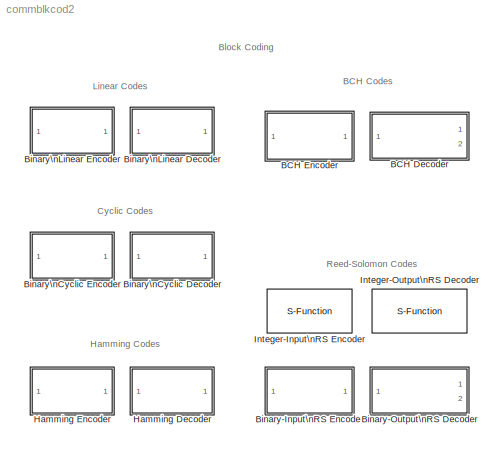
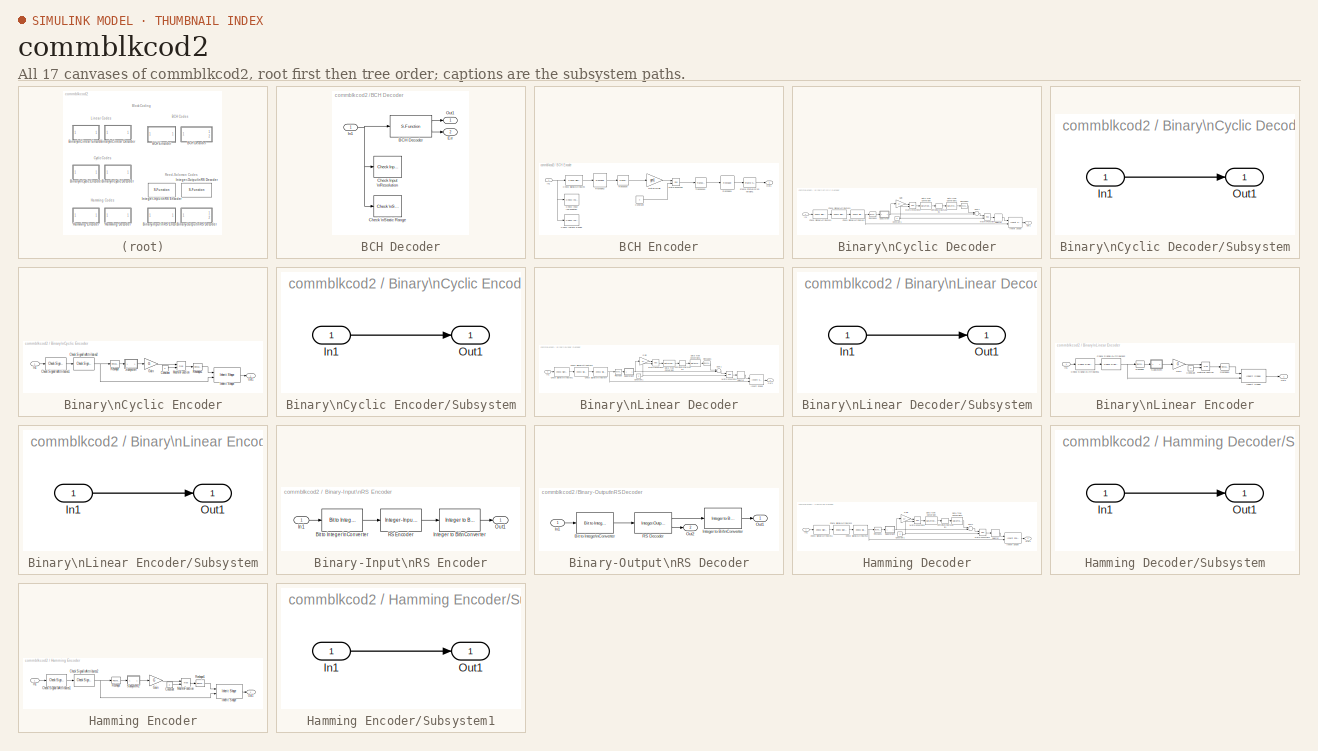
[diagram: thumbnail index - all 17 canvases of the model, root first then tree order]
MODEL commblkcod2
KIND library
BLOCK [SubSystem] BCH Decoder
  MaskCallbackString = ||
  MaskDescription = Decode a BCH codeword with message length K and codeword length N. N must have the form 2^M-1, where 3 <= M <= 9 .  The values of N and K must produce a valid narrow-sense BCH codeword.\n\nThe input must contain exactly N elements. The input must be a frame-based column vector.
  MaskDisplay = plot(0,0,100,100,[5 15 15 5 15 15 5 5 15 15 20 15 75 75 85 75 75 15 75 75 85 85 95 95 85 85 95],[75 75 85 85 85 65 65 95 95 83 80 77 77 73 80 87 83 83 83 87 80 90 90 70 70 80 80]);disp('BCH de');\nport_label('output',params.portnum, params.portlabel);\n
  MaskEnableString = on,on,on
  MaskHelp = helpview(commbhelp)
  MaskIconFrame = on
  MaskIconOpaque = on
  MaskIconRotate = none
  MaskIconUnits = autoscale
  MaskInitialization = params = commblksbchdec(n,k, showNumErr);
  MaskPromptString = N|K|Output number of corrected errors
  MaskSelfModifiable = on
  MaskStyleString = edit,edit,checkbox
  MaskTabNameString = ,,
  MaskToolTipString = on,on,on
  MaskTunableValueString = on,on,off
  MaskType = BCH Decoder
  MaskValueString = 15|5|on
  MaskVarAliasString = ,,
  MaskVariables = n=@1;k=@2;showNumErr=@3;
  MaskVisibilityString = on,on,on
  MinAlgLoopOccurrences = off
  Ports = [1, 2]
  PropExecContextAcrossSSBoundary = on
  RTWSystemCode = Auto
  TreatAsAtomicUnit = off
BLOCK [S-Function] BCH Decoder/BCH Decoder
  FunctionName = scomberlekamp
  Parameters = n,k,params.m, params.t,params.poly,1,0,1
  Ports = [1, 2]
BLOCK [Reference] BCH Decoder/Check Input \nResolution  REF=simulink/Model\nVerification/Check Input \nResolution
  Description = -Inf < u < +Inf
  Ports = [1]
  SourceBlock = simulink/Model\nVerification/Check Input \nResolution
  SourceType = Checks_Resolution
  callback = error('Input must be 0 or 1')
  enabled = on
  export = off
  resolution = 1
  stopWhenAssertionFail = on
BLOCK [Reference] BCH Decoder/Check \nStatic Range  REF=simulink/Model\nVerification/Check \nStatic Range
  Description = 0 <= u <= 1
  Ports = [1]
  SourceBlock = simulink/Model\nVerification/Check \nStatic Range
  SourceType = Checks_SRange
  callback = error('Input must be 0 or 1')
  enabled = on
  export = off
  icon = graphic
  max = 1
  max_included = on
  min = 0
  min_included = on
  stopWhenAssertionFail = on
BLOCK [Outport] BCH Decoder/Err
  BusOutputAsStruct = off
  IconDisplay = Port number
  Port = 2
BLOCK [Inport] BCH Decoder/In1
  IconDisplay = Port number
  LatchInput = off
BLOCK [Outport] BCH Decoder/Out1
  BusOutputAsStruct = off
  IconDisplay = Port number
BLOCK [SubSystem] BCH Encoder
  MaskCallbackString = |
  MaskDescription = Create a BCH code with message length K and codeword length N. N must have the form 2^M-1, where 3 <= M <= 9.  The values of N and K must produce a valid narrow-sense BCH codeword.\n\nThe input must contain exactly K elements. The input must be a frame-based column vector.
  MaskDisplay = plot(0,0,100,100,[05 15 15 05 05 15 15 15  15 20 15 75 75 85 75 75 15 75 75  85 85 95 95 85 85 95 85 85 95],[80 80 90 90 70 70 90 80  83 80 77 77 73 80 87 83 83 83 87  80 95 95 65 65 85 85 85 75 75]);disp('BCH en')
  MaskEnableString = on,on
  MaskHelp = helpview(commbhelp)
  MaskIconFrame = on
  MaskIconOpaque = on
  MaskIconRotate = none
  MaskIconUnits = autoscale
  MaskInitialization = genpoly = bchgenpoly(n,k);\n[h, gen] = cyclgen(n,double(genpoly.x));\ngen1 =[ gen(:,n-k+1:end) gen(:,1:n-k) ];
  MaskPromptString = N|K
  MaskStyleString = edit,edit
  MaskTabNameString = ,
  MaskToolTipString = on,on
  MaskTunableValueString = on,on
  MaskType = BCH Encoder
  MaskValueString = 15|5
  MaskVarAliasString = ,
  MaskVariables = n=@1;k=@2;
  MaskVisibilityString = on,on
  MinAlgLoopOccurrences = off
  Ports = [1, 1]
  PropExecContextAcrossSSBoundary = on
  RTWSystemCode = Auto
  TreatAsAtomicUnit = off
BLOCK [Reference] BCH Encoder/Check Input \nResolution  REF=simulink/Model\nVerification/Check Input \nResolution
  Description = -Inf < u < +Inf
  Ports = [1]
  SourceBlock = simulink/Model\nVerification/Check Input \nResolution
  SourceType = Checks_Resolution
  callback = error('Input must be 0 or 1')
  enabled = on
  export = off
  resolution = 1
  stopWhenAssertionFail = on
BLOCK [Reference] BCH Encoder/Check Signal\nAttributes  REF=dspsigattribs/Check Signal\nAttributes
  AttributesFormatString = \\n
  Complexity = Real
  DatatypeCheckMethod = Ignore
  DatatypeGeneral = Boolean
  Dimensions = Column vector (2-D)
  DimsCheckMethod = Is...
  DtypeFixedSpecific = Any fixed-point
  DtypeFloatSpecific = Any floating-point
  DtypeIntSpecific = Any integer
  Frame = Frame-based
  Ports = [1, 1]
  SampleMode = Ignore
  SigAttribCheckMethod = Does not match attributes exactly
  SourceBlock = dspsigattribs/Check Signal\nAttributes
  SourceType = Check Signal Attributes
BLOCK [Reference] BCH Encoder/Check \nStatic Range  REF=simulink/Model\nVerification/Check \nStatic Range
  Description = 0 <= u <= 1
  Ports = [1]
  SourceBlock = simulink/Model\nVerification/Check \nStatic Range
  SourceType = Checks_SRange
  callback = error('Input must be 0 or 1')
  enabled = on
  export = off
  icon = graphic
  max = 1
  max_included = on
  min = 0
  min_included = on
  stopWhenAssertionFail = on
BLOCK [Constant] BCH Encoder/Constant
  Value = 2
BLOCK [Reference] BCH Encoder/Frame Status\nConversion1  REF=dspsigattribs/Frame Status\nConversion
  AttributesFormatString = \\n
  Ports = [1, 1]
  SourceBlock = dspsigattribs/Frame Status\nConversion
  SourceType = Frame Status Conversion
  growRefPort = off
  outframe = Frame-based
BLOCK [Inport] BCH Encoder/In1
  IconDisplay = Port number
  LatchInput = off
BLOCK [Math] BCH Encoder/Math\nFunction
  Operator = mod
  Ports = [2, 1]
BLOCK [Gain] BCH Encoder/Matrix\nGain
  Gain = gen1
  Multiplication = Matrix(u*K)
BLOCK [Outport] BCH Encoder/Out1
  BusOutputAsStruct = off
  IconDisplay = Port number
BLOCK [Reference] BCH Encoder/Reshape1  REF=simulink/Math\nOperations/Reshape
  OutputDimensionality = Customize
  OutputDimensions = [n,1]
  Ports = [1, 1]
  SourceBlock = simulink/Math\nOperations/Reshape
  SourceType = Reshape
BLOCK [Reference] BCH Encoder/Reshape2  REF=simulink/Math\nOperations/Reshape
  OutputDimensionality = Customize
  OutputDimensions = [k, 1 ]
  Ports = [1, 1]
  SourceBlock = simulink/Math\nOperations/Reshape
  SourceType = Reshape
BLOCK [Reference] BCH Encoder/Transpose  REF=dspmtrx3/Transpose
  AttributesFormatString = \\n
  Hermitian = off
  Ports = [1, 1]
  SourceBlock = dspmtrx3/Transpose
  SourceType = Transpose
BLOCK [Reference] BCH Encoder/Transpose1  REF=dspmtrx3/Transpose
  AttributesFormatString = \\n
  Hermitian = off
  Ports = [1, 1]
  SourceBlock = dspmtrx3/Transpose
  SourceType = Transpose
BLOCK [SubSystem] Binary-Input\nRS Encoder
  MaskCallbackString = ||commblkrsencbin(gcb,'cbSpecPrimPoly');||commblkrsencbin(gcb,'cbSpecGenPoly');|
  MaskDescription = Encode the message in the input vector using an (N,K) Reed-Solomon encoder with the narrow-sense generator polynomial.  The input must be a frame-based column vector with an integer multiple of K*ceil(log2(N+1)) bits.  Each group of K*ceil(log2(N+1)) input bits represents one message word to be encoded.\n\nThe optional 'Primitive polynomial' parameter is a row vector that represents the binary coe...<+485ch>
  MaskDisplay = plot(0,0,100,100,[05 15 15 05 05 15 15 15  15 20 15 75 75 85 75 75 15 75 75  85 85 95 95 85 85 95 85 85 95],[80 80 90 90 70 70 90 80  83 80 77 77 73 80 87 83 83 83 87  80 95 95 65 65 85 85 85 75 75]);\ndisp('\\nBinary Input\\nRS Encoder')
  MaskEnableString = on,on,on,off,on,off
  MaskHelp = helpview(commbhelp)
  MaskIconFrame = on
  MaskIconOpaque = on
  MaskIconRotate = none
  MaskIconUnits = autoscale
  MaskInitialization = [eStr,params]=commblkrsencbin(gcb, 'init');\nif(eStr.ecode==1)\n    error(eStr.emsg);\nelseif(eStr.ecode==2)\n    warning(eStr.emsg);\nend;\n
  MaskPromptString = Codeword length N:|Message length K:|Specify primitive polynomial|Primitive polynomial:|Specify generator polynomial|Generator polynomial:
  MaskSelfModifiable = on
  MaskStyleString = edit,edit,checkbox,edit,checkbox,edit
  MaskTabNameString = ,,,,,
  MaskToolTipString = on,on,on,on,on,on
  MaskTunableValueString = on,on,on,on,on,on
  MaskType = Binary-Input RS Encoder
  MaskValueString = 7|3|off|[1 0 1 1]|off|rsgenpoly(7,3)
  MaskVarAliasString = ,,,,,
  MaskVariables = n=@1;k=@2;specPrimPoly=@3;primPoly=@4;specGenPoly=@5;genPoly=@6;
  MaskVisibilityString = on,on,on,on,on,on
  MinAlgLoopOccurrences = off
  Ports = [1, 1]
  PropExecContextAcrossSSBoundary = on
  RTWSystemCode = Auto
  TreatAsAtomicUnit = off
BLOCK [Reference] Binary-Input\nRS Encoder/Bit to Integer\nConverter  REF=commutil2/Bit to Integer\nConverter
  Ports = [1, 1]
  SourceBlock = commutil2/Bit to Integer\nConverter
  SourceType = Bit to Integer Converter
  nbits = params.m
BLOCK [Inport] Binary-Input\nRS Encoder/In1
  IconDisplay = Port number
  LatchInput = off
BLOCK [Reference] Binary-Input\nRS Encoder/Integer to Bit\nConverter  REF=commutil2/Integer to Bit\nConverter
  Ports = [1, 1]
  SourceBlock = commutil2/Integer to Bit\nConverter
  SourceType = Integer to Bit Converter
  nbits = params.m
BLOCK [Outport] Binary-Input\nRS Encoder/Out1
  BusOutputAsStruct = off
  IconDisplay = Port number
BLOCK [Reference] Binary-Input\nRS Encoder/RS Encoder  REF=commblkcod2/Integer-Input\nRS Encoder
  Ports = [1, 1]
  SourceBlock = commblkcod2/Integer-Input\nRS Encoder
  SourceType = Integer-Input RS Encoder
  genPoly = genPoly
  k = k
  n = n
  primPoly = primPoly
  specGenPoly = off
  specPrimPoly = off
BLOCK [SubSystem] Binary-Output\nRS Decoder
  MaskCallbackString = ||commblkrsdecbin(gcb,'cbSpecPrimPoly');||commblkrsdecbin(gcb,'cbSpecGenPoly');||commblkrsdecbin(gcb,'cbShowNumErr');
  MaskDescription = Attempt to decode the input received signal using an (N,K) Reed-Solomon decoder with the narrow-sense generator polynomial.  The input must be a frame-based column vector with an integer multiple of N*ceil(log2(N+1)) bits.  Each group of N*ceil(log2(N+1)) input bits represents one received word to be decoded.\n\nThe optional 'Primitive polynomial' parameter is a row vector that represents the bina...<+830ch>
  MaskDisplay = plot(0,0,100,100,[5 15 15 5 15 15 5 5 15 15 20 15 75 75 85 75 75 15 75 75 85 85 95 95 85 85 95],[75 75 85 85 85 65 65 95 95 83 80 77 77 73 80 87 83 83 83 87 80 90 90 70 70 80 80]);\ndisp('\\nBinary Output\\nRS Decoder')\ntext(params.x,params.y,params.portlabel)\n
  MaskEnableString = on,on,on,off,on,off,on
  MaskHelp = helpview(commbhelp)
  MaskIconFrame = on
  MaskIconOpaque = on
  MaskIconRotate = none
  MaskIconUnits = autoscale
  MaskInitialization = [eStr,params]=commblkrsdecbin(gcb, 'init');\nif(eStr.ecode==1)\n    error(eStr.emsg);\nelseif(eStr.ecode==2)\n    warning(eStr.emsg);\nend;\n
  MaskPromptString = Codeword length N:|Message length K:|Specify primitive polynomial|Primitive polynomial:|Specify generator polynomial|Generator polynomial:|Output number of corrected errors
  MaskSelfModifiable = on
  MaskStyleString = edit,edit,checkbox,edit,checkbox,edit,checkbox
  MaskTabNameString = ,,,,,,
  MaskToolTipString = on,on,on,on,on,on,on
  MaskTunableValueString = on,on,on,on,on,on,off
  MaskType = Binary-Output RS Decoder
  MaskValueString = 7|3|off|[1 0 1 1]|off|rsgenpoly(7,3)|on
  MaskVarAliasString = ,,,,,,
  MaskVariables = n=@1;k=@2;specPrimPoly=@3;primPoly=@4;specGenPoly=@5;genPoly=@6;showNumErr=@7;
  MaskVisibilityString = on,on,on,on,on,on,on
  MinAlgLoopOccurrences = off
  Ports = [1, 2]
  PropExecContextAcrossSSBoundary = on
  RTWSystemCode = Auto
  TreatAsAtomicUnit = off
BLOCK [Reference] Binary-Output\nRS Decoder/Bit to Integer\nConverter  REF=commutil2/Bit to Integer\nConverter
  Ports = [1, 1]
  SourceBlock = commutil2/Bit to Integer\nConverter
  SourceType = Bit to Integer Converter
  nbits = params.m
BLOCK [Inport] Binary-Output\nRS Decoder/In1
  IconDisplay = Port number
  LatchInput = off
BLOCK [Reference] Binary-Output\nRS Decoder/Integer to Bit\nConverter  REF=commutil2/Integer to Bit\nConverter
  Ports = [1, 1]
  SourceBlock = commutil2/Integer to Bit\nConverter
  SourceType = Integer to Bit Converter
  nbits = params.m
BLOCK [Outport] Binary-Output\nRS Decoder/Out1
  BusOutputAsStruct = off
  IconDisplay = Port number
BLOCK [Outport] Binary-Output\nRS Decoder/Out2
  BusOutputAsStruct = off
  IconDisplay = Port number
  Port = 2
BLOCK [Reference] Binary-Output\nRS Decoder/RS Decoder  REF=commblkcod2/Integer-Output\nRS Decoder
  Ports = [1, 2]
  SourceBlock = commblkcod2/Integer-Output\nRS Decoder
  SourceType = Integer-Output RS Decoder
  genPoly = genPoly
  k = k
  n = n
  primPoly = primPoly
  showNumErr = on
  specGenPoly = off
  specPrimPoly = off
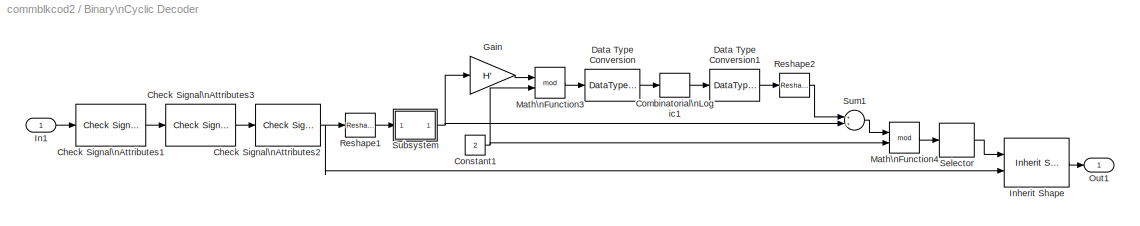
BLOCK [SubSystem] Binary\nCyclic Decoder
  MaskCallbackString = |
  MaskDescription = Recover a message vector from a codeword vector of a binary systematic cyclic code.  The message is of length K and the codeword is of length N, where N has the form 2^M-1, for some integer M greater than or equal to 3.\n\nThe input must contain exactly N elements.  If it is frame-based, then it must be a column vector.
  MaskDisplay = plot(0,0,100,100,[5 15 15 5 15 15 5 5 15 15 20 15 75 75 85 75 75 15 75 75 85 85 95 95 85 85 95],[75 75 85 85 85 65 65 95 95 83 80 77 77 73 80 87 83 83 83 87 80 90 90 70 70 80 80]);\ndisp('Cyclic de')
  MaskEnableString = on,on
  MaskHelp = helpview(commbhelp)
  MaskIconFrame = on
  MaskIconOpaque = on
  MaskIconRotate = none
  MaskIconUnits = autoscale
  MaskInitialization = m=log2(n+1); if ~isequal(floor(m),m) | n<3,error('N must have the form 2^M-1 for some integer M greater than 2.');end;\nevalc('if isequal(length(p),1),p=cyclpoly(n,p,''min'');if isempty(p), error(''No cyclic code exists for specified values of N and K.''); end; end;[H,G]=cyclgen(n,p);trt=syndtable(H);');[k,n]=size(G);
  MaskPromptString = Codeword length N:|Message length K, or generator polynomial:
  MaskStyleString = edit,edit
  MaskTabNameString = ,
  MaskToolTipString = on,on
  MaskTunableValueString = on,on
  MaskType = Binary Cyclic Decoder
  MaskValueString = 7|4
  MaskVarAliasString = ,
  MaskVariables = n=@1;p=@2;
  MaskVisibilityString = on,on
  MinAlgLoopOccurrences = off
  Ports = [1, 1]
  PropExecContextAcrossSSBoundary = on
  RTWSystemCode = Auto
  TreatAsAtomicUnit = off
BLOCK [Reference] Binary\nCyclic Decoder/Check Signal\nAttributes1  REF=dspsigattribs/Check Signal\nAttributes
  Complexity = Ignore
  DatatypeCheckMethod = Ignore
  DatatypeGeneral = Boolean
  Dimensions = Row vector (2-D)
  DimsCheckMethod = Is...
  DtypeFixedSpecific = Any fixed-point
  DtypeFloatSpecific = Any floating-point
  DtypeIntSpecific = Any integer
  Frame = Frame-based
  Ports = [1, 1]
  SampleMode = Ignore
  SigAttribCheckMethod = Matches attributes exactly
  SourceBlock = dspsigattribs/Check Signal\nAttributes
  SourceType = Check Signal Attributes
BLOCK [Reference] Binary\nCyclic Decoder/Check Signal\nAttributes2  REF=dspsigattribs/Check Signal\nAttributes
  Complexity = Ignore
  DatatypeCheckMethod = Ignore
  DatatypeGeneral = Boolean
  Dimensions = Full matrix (2-D)
  DimsCheckMethod = Is...
  DtypeFixedSpecific = Any fixed-point
  DtypeFloatSpecific = Any floating-point
  DtypeIntSpecific = Any integer
  Frame = Ignore
  Ports = [1, 1]
  SampleMode = Ignore
  SigAttribCheckMethod = Matches attributes exactly
  SourceBlock = dspsigattribs/Check Signal\nAttributes
  SourceType = Check Signal Attributes
BLOCK [Reference] Binary\nCyclic Decoder/Check Signal\nAttributes3  REF=dspsigattribs/Check Signal\nAttributes
  Complexity = Ignore
  DatatypeCheckMethod = Ignore
  DatatypeGeneral = Boolean
  Dimensions = Scalar (1-D or 2-D)
  DimsCheckMethod = Is...
  DtypeFixedSpecific = Any fixed-point
  DtypeFloatSpecific = Any floating-point
  DtypeIntSpecific = Any integer
  Frame = Ignore
  Ports = [1, 1]
  SampleMode = Ignore
  SigAttribCheckMethod = Matches attributes exactly
  SourceBlock = dspsigattribs/Check Signal\nAttributes
  SourceType = Check Signal Attributes
BLOCK [CombinatorialLogic] Binary\nCyclic Decoder/Combinatorial\nLogic1
  TruthTable = trt
BLOCK [Constant] Binary\nCyclic Decoder/Constant1
  Value = 2
BLOCK [DataTypeConversion] Binary\nCyclic Decoder/Data Type Conversion
  OutDataTypeMode = boolean
BLOCK [DataTypeConversion] Binary\nCyclic Decoder/Data Type Conversion1
  OutDataTypeMode = double
BLOCK [Gain] Binary\nCyclic Decoder/Gain
  Gain = H'
  Multiplication = Matrix(u*K)
BLOCK [Inport] Binary\nCyclic Decoder/In1
  IconDisplay = Port number
  LatchInput = off
BLOCK [Reference] Binary\nCyclic Decoder/Inherit Shape  REF=commblksprivate/Inherit Shape
  Ports = [2, 1]
  SourceBlock = commblksprivate/Inherit Shape
  SourceType = Inherit Shape
BLOCK [Math] Binary\nCyclic Decoder/Math\nFunction3
  Operator = mod
  Ports = [2, 1]
BLOCK [Math] Binary\nCyclic Decoder/Math\nFunction4
  Operator = mod
  Ports = [2, 1]
BLOCK [Outport] Binary\nCyclic Decoder/Out1
  BusOutputAsStruct = off
  IconDisplay = Port number
BLOCK [Reference] Binary\nCyclic Decoder/Reshape1  REF=simulink/Math\nOperations/Reshape
  OutputDimensionality = Row vector
  OutputDimensions = [1,1]
  Ports = [1, 1]
  SourceBlock = simulink/Math\nOperations/Reshape
  SourceType = Reshape
BLOCK [Reference] Binary\nCyclic Decoder/Reshape2  REF=simulink/Math\nOperations/Reshape
  OutputDimensionality = Row vector
  OutputDimensions = [1,1]
  Ports = [1, 1]
  SourceBlock = simulink/Math\nOperations/Reshape
  SourceType = Reshape
BLOCK [Selector] Binary\nCyclic Decoder/Selector
  Elements = [n-k+1:n]
  InputPortWidth = n
  Ports = [1, 1]
BLOCK [SubSystem] Binary\nCyclic Decoder/Subsystem
  AncestorBlock = commblkcod2/Binary\nLinear Decoder/Subsystem
  MaskIconFrame = on
  MaskIconOpaque = on
  MaskIconRotate = none
  MaskIconUnits = autoscale
  MinAlgLoopOccurrences = off
  Ports = [1, 1]
  PropExecContextAcrossSSBoundary = on
  RTWSystemCode = Auto
  TreatAsAtomicUnit = off
BLOCK [Inport] Binary\nCyclic Decoder/Subsystem/In1
  IconDisplay = Port number
  LatchInput = off
  PortDimensions = [1 n]
BLOCK [Outport] Binary\nCyclic Decoder/Subsystem/Out1
  BusOutputAsStruct = off
  IconDisplay = Port number
BLOCK [Sum] Binary\nCyclic Decoder/Sum1
  Ports = [2, 1]
BLOCK [SubSystem] Binary\nCyclic Encoder
  MaskCallbackString = |
  MaskDescription = Create a systematic cyclic code with message length K and codeword length N.  The number N must have the form 2^M-1, where M is an integer greater than or equal to 3.\n\nThe input must contain exactly K elements.  If it is frame-based, then it must be a column vector.
  MaskDisplay = plot(0,0,100,100,[05 15 15 05 05 15 15 15  15 20 15 75 75 85 75 75 15 75 75  85 85 95 95 85 85 95 85 85 95],[80 80 90 90 70 70 90 80  83 80 77 77 73 80 87 83 83 83 87  80 95 95 65 65 85 85 85 75 75]);\ndisp('Cyclic en')
  MaskEnableString = on,on
  MaskHelp = helpview(commbhelp)
  MaskIconFrame = on
  MaskIconOpaque = on
  MaskIconRotate = none
  MaskIconUnits = autoscale
  MaskInitialization = m=log2(n+1); if ~isequal(floor(m),m) | n<3,error('N must have the form 2^M-1 for some integer M >= 3.');end;evalc('if length(p)==1,p=cyclpoly(n,p,''min''); if isempty(p),error(''No cyclic code exists for specified values of N and K.'');end;end;  k=n-length(p)+1; [h,G]=cyclgen(n, p);');
  MaskPromptString = Codeword length N:|Message length K, or generator polynomial:
  MaskStyleString = edit,edit
  MaskTabNameString = ,
  MaskToolTipString = on,on
  MaskTunableValueString = on,on
  MaskType = Binary Cyclic Encoder
  MaskValueString = 7|4
  MaskVarAliasString = ,
  MaskVariables = n=@1;p=@2;
  MaskVisibilityString = on,on
  MinAlgLoopOccurrences = off
  Ports = [1, 1]
  PropExecContextAcrossSSBoundary = on
  RTWSystemCode = Auto
  TreatAsAtomicUnit = off
BLOCK [Reference] Binary\nCyclic Encoder/Check Signal\nAttributes1  REF=dspsigattribs/Check Signal\nAttributes
  Complexity = Ignore
  DatatypeCheckMethod = Ignore
  DatatypeGeneral = Boolean
  Dimensions = Row vector (2-D)
  DimsCheckMethod = Is...
  DtypeFixedSpecific = Any fixed-point
  DtypeFloatSpecific = Any floating-point
  DtypeIntSpecific = Any integer
  Frame = Frame-based
  Ports = [1, 1]
  SampleMode = Ignore
  SigAttribCheckMethod = Matches attributes exactly
  SourceBlock = dspsigattribs/Check Signal\nAttributes
  SourceType = Check Signal Attributes
BLOCK [Reference] Binary\nCyclic Encoder/Check Signal\nAttributes2  REF=dspsigattribs/Check Signal\nAttributes
  Complexity = Ignore
  DatatypeCheckMethod = Ignore
  DatatypeGeneral = Boolean
  Dimensions = Full matrix (2-D)
  DimsCheckMethod = Is...
  DtypeFixedSpecific = Any fixed-point
  DtypeFloatSpecific = Any floating-point
  DtypeIntSpecific = Any integer
  Frame = Ignore
  Ports = [1, 1]
  SampleMode = Ignore
  SigAttribCheckMethod = Matches attributes exactly
  SourceBlock = dspsigattribs/Check Signal\nAttributes
  SourceType = Check Signal Attributes
BLOCK [Constant] Binary\nCyclic Encoder/Constant
  Value = 2
BLOCK [Gain] Binary\nCyclic Encoder/Gain
  Gain = G
  Multiplication = Matrix(u*K)
BLOCK [Inport] Binary\nCyclic Encoder/In1
  IconDisplay = Port number
  LatchInput = off
BLOCK [Reference] Binary\nCyclic Encoder/Inherit Shape  REF=commblksprivate/Inherit Shape
  Ports = [2, 1]
  SourceBlock = commblksprivate/Inherit Shape
  SourceType = Inherit Shape
BLOCK [Math] Binary\nCyclic Encoder/Math\nFunction
  Operator = mod
  Ports = [2, 1]
BLOCK [Outport] Binary\nCyclic Encoder/Out1
  BusOutputAsStruct = off
  IconDisplay = Port number
BLOCK [Reference] Binary\nCyclic Encoder/Reshape  REF=simulink/Math\nOperations/Reshape
  OutputDimensionality = Row vector
  OutputDimensions = [1,1]
  Ports = [1, 1]
  SourceBlock = simulink/Math\nOperations/Reshape
  SourceType = Reshape
BLOCK [Reference] Binary\nCyclic Encoder/Reshape1  REF=simulink/Math\nOperations/Reshape
  OutputDimensionality = Column vector
  OutputDimensions = [1,1]
  Ports = [1, 1]
  SourceBlock = simulink/Math\nOperations/Reshape
  SourceType = Reshape
BLOCK [SubSystem] Binary\nCyclic Encoder/Subsystem
  AncestorBlock = commblkcod2/Binary\nLinear Decoder/Subsystem
  MaskIconFrame = on
  MaskIconOpaque = on
  MaskIconRotate = none
  MaskIconUnits = autoscale
  MinAlgLoopOccurrences = off
  Ports = [1, 1]
  PropExecContextAcrossSSBoundary = on
  RTWSystemCode = Auto
  TreatAsAtomicUnit = off
BLOCK [Inport] Binary\nCyclic Encoder/Subsystem/In1
  IconDisplay = Port number
  LatchInput = off
  PortDimensions = [1 k]
BLOCK [Outport] Binary\nCyclic Encoder/Subsystem/Out1
  BusOutputAsStruct = off
  IconDisplay = Port number
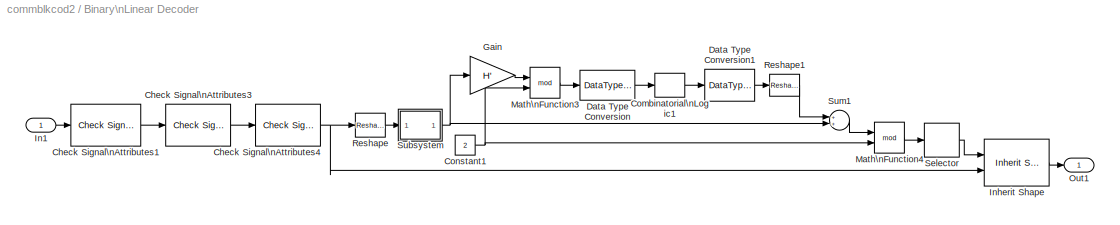
BLOCK [SubSystem] Binary\nLinear Decoder
  MaskCallbackString = |
  MaskDescription = Recover a binary message vector from a binary codeword vector of a linear block code.  The message is of length K and the codeword is of length N, where K and N are the number of rows and columns of the generator matrix respectively.  The number N must have the form 2^M-1, for some integer M greater than or equal to 3.\n\nThe decoder assumes that the encoder's generator matrix has the standard sys...<+215ch>
  MaskDisplay = plot(0,0,100,100,[5 15 15 5 15 15 5 5 15 15 20 15 75 75 85 75 75 15 75 75 85 85 95 95 85 85 95],[75 75 85 85 85 65 65 95 95 83 80 77 77 73 80 87 83 83 83 87 80 90 90 70 70 80 80]);\ndisp('Linear de')
  MaskEnableString = on,on
  MaskHelp = helpview(commbhelp)
  MaskIconFrame = on
  MaskIconOpaque = on
  MaskIconRotate = none
  MaskIconUnits = autoscale
  MaskInitialization = [k,n]=size(G);  if k>=n | ~isequal(G(:,n-k+1:n),eye(k)), error('The generator matrix must have the standard systematic form [P I].'); end;\nH=gen2par(G);if trt==0,evalc('trt=syndtable(H);');end;
  MaskPromptString = Generator matrix (binary K-by-N matrix):|Decoding table (0 for table corresponding to Generator matrix):
  MaskStyleString = edit,edit
  MaskTabNameString = ,
  MaskToolTipString = on,on
  MaskTunableValueString = on,on
  MaskType = Binary Linear Decoder
  MaskValueString = [[1 1 0; 0 1 1; 1 1 1;1 0 1] eye(4)]|0
  MaskVarAliasString = ,
  MaskVariables = G=@1;trt=@2;
  MaskVisibilityString = on,on
  MinAlgLoopOccurrences = off
  Ports = [1, 1]
  PropExecContextAcrossSSBoundary = on
  RTWSystemCode = Auto
  TreatAsAtomicUnit = off
BLOCK [Reference] Binary\nLinear Decoder/Check Signal\nAttributes1  REF=dspsigattribs/Check Signal\nAttributes
  Complexity = Ignore
  DatatypeCheckMethod = Ignore
  DatatypeGeneral = Boolean
  Dimensions = Row vector (2-D)
  DimsCheckMethod = Is...
  DtypeFixedSpecific = Any fixed-point
  DtypeFloatSpecific = Any floating-point
  DtypeIntSpecific = Any integer
  Frame = Frame-based
  Ports = [1, 1]
  SampleMode = Ignore
  SigAttribCheckMethod = Matches attributes exactly
  SourceBlock = dspsigattribs/Check Signal\nAttributes
  SourceType = Check Signal Attributes
BLOCK [Reference] Binary\nLinear Decoder/Check Signal\nAttributes3  REF=dspsigattribs/Check Signal\nAttributes
  Complexity = Ignore
  DatatypeCheckMethod = Ignore
  DatatypeGeneral = Boolean
  Dimensions = Scalar (1-D or 2-D)
  DimsCheckMethod = Is...
  DtypeFixedSpecific = Any fixed-point
  DtypeFloatSpecific = Any floating-point
  DtypeIntSpecific = Any integer
  Frame = Ignore
  Ports = [1, 1]
  SampleMode = Ignore
  SigAttribCheckMethod = Matches attributes exactly
  SourceBlock = dspsigattribs/Check Signal\nAttributes
  SourceType = Check Signal Attributes
BLOCK [Reference] Binary\nLinear Decoder/Check Signal\nAttributes4  REF=dspsigattribs/Check Signal\nAttributes
  Complexity = Ignore
  DatatypeCheckMethod = Ignore
  DatatypeGeneral = Boolean
  Dimensions = Full matrix (2-D)
  DimsCheckMethod = Is...
  DtypeFixedSpecific = Any fixed-point
  DtypeFloatSpecific = Any floating-point
  DtypeIntSpecific = Any integer
  Frame = Ignore
  Ports = [1, 1]
  SampleMode = Ignore
  SigAttribCheckMethod = Matches attributes exactly
  SourceBlock = dspsigattribs/Check Signal\nAttributes
  SourceType = Check Signal Attributes
BLOCK [CombinatorialLogic] Binary\nLinear Decoder/Combinatorial\nLogic1
  TruthTable = trt
BLOCK [Constant] Binary\nLinear Decoder/Constant1
  Value = 2
BLOCK [DataTypeConversion] Binary\nLinear Decoder/Data Type Conversion
  OutDataTypeMode = boolean
BLOCK [DataTypeConversion] Binary\nLinear Decoder/Data Type Conversion1
  OutDataTypeMode = double
BLOCK [Gain] Binary\nLinear Decoder/Gain
  Gain = H'
  Multiplication = Matrix(u*K)
BLOCK [Inport] Binary\nLinear Decoder/In1
  IconDisplay = Port number
  LatchInput = off
BLOCK [Reference] Binary\nLinear Decoder/Inherit Shape  REF=commblksprivate/Inherit Shape
  Ports = [2, 1]
  SourceBlock = commblksprivate/Inherit Shape
  SourceType = Inherit Shape
BLOCK [Math] Binary\nLinear Decoder/Math\nFunction3
  Operator = mod
  Ports = [2, 1]
BLOCK [Math] Binary\nLinear Decoder/Math\nFunction4
  Operator = mod
  Ports = [2, 1]
BLOCK [Outport] Binary\nLinear Decoder/Out1
  BusOutputAsStruct = off
  IconDisplay = Port number
BLOCK [Reference] Binary\nLinear Decoder/Reshape  REF=simulink/Math\nOperations/Reshape
  OutputDimensionality = Row vector
  OutputDimensions = [1,1]
  Ports = [1, 1]
  SourceBlock = simulink/Math\nOperations/Reshape
  SourceType = Reshape
BLOCK [Reference] Binary\nLinear Decoder/Reshape1  REF=simulink/Math\nOperations/Reshape
  OutputDimensionality = Row vector
  OutputDimensions = [1,1]
  Ports = [1, 1]
  SourceBlock = simulink/Math\nOperations/Reshape
  SourceType = Reshape
BLOCK [Selector] Binary\nLinear Decoder/Selector
  Elements = [n-k+1:n]
  InputPortWidth = n
  Ports = [1, 1]
BLOCK [SubSystem] Binary\nLinear Decoder/Subsystem
  AncestorBlock = commblkcod2/Binary\nLinear Encoder/Subsystem
  MaskIconFrame = on
  MaskIconOpaque = on
  MaskIconRotate = none
  MaskIconUnits = autoscale
  MinAlgLoopOccurrences = off
  Ports = [1, 1]
  PropExecContextAcrossSSBoundary = on
  RTWSystemCode = Auto
  TreatAsAtomicUnit = off
BLOCK [Inport] Binary\nLinear Decoder/Subsystem/In1
  IconDisplay = Port number
  LatchInput = off
  PortDimensions = [1 n]
BLOCK [Outport] Binary\nLinear Decoder/Subsystem/Out1
  BusOutputAsStruct = off
  IconDisplay = Port number
BLOCK [Sum] Binary\nLinear Decoder/Sum1
  Ports = [2, 1]
BLOCK [SubSystem] Binary\nLinear Encoder
  MaskDescription = Create a binary linear block code with message length K and codeword length N, where K and N are the number of rows and columns of the generator matrix respectively.\n\nTo use the Binary Linear Decoder block at the decoder side, provide a generator matrix in the standard systematic form [P I].\n\nThe input must contain exactly K elements.  If it is frame-based, then it must be a column vector.
  MaskDisplay = plot(0,0,100,100,[05 15 15 05 05 15 15 15  15 20 15 75 75 85 75 75 15 75 75  85 85 95 95 85 85 95 85 85 95],[80 80 90 90 70 70 90 80  83 80 77 77 73 80 87 83 83 83 87  80 95 95 65 65 85 85 85 75 75]);\ndisp('Linear en')
  MaskEnableString = on
  MaskHelp = helpview(commbhelp)
  MaskIconFrame = on
  MaskIconOpaque = on
  MaskIconRotate = none
  MaskIconUnits = autoscale
  MaskInitialization = [k n]=size(G);
  MaskPromptString = Generator matrix (binary K-by-N matrix):
  MaskStyleString = edit
  MaskToolTipString = on
  MaskTunableValueString = on
  MaskType = Binary Linear Encoder
  MaskValueString = [[1 1 0; 0 1 1; 1 1 1; 1 0 1] eye(4)]
  MaskVariables = G=@1;
  MaskVisibilityString = on
  MinAlgLoopOccurrences = off
  Ports = [1, 1]
  PropExecContextAcrossSSBoundary = on
  RTWSystemCode = Auto
  TreatAsAtomicUnit = off
BLOCK [Reference] Binary\nLinear Encoder/Check Signal\nAttributes1  REF=dspsigattribs/Check Signal\nAttributes
  Complexity = Ignore
  DatatypeCheckMethod = Ignore
  DatatypeGeneral = Boolean
  Dimensions = Row vector (2-D)
  DimsCheckMethod = Is...
  DtypeFixedSpecific = Any fixed-point
  DtypeFloatSpecific = Any floating-point
  DtypeIntSpecific = Any integer
  Frame = Frame-based
  Ports = [1, 1]
  SampleMode = Ignore
  SigAttribCheckMethod = Matches attributes exactly
  SourceBlock = dspsigattribs/Check Signal\nAttributes
  SourceType = Check Signal Attributes
BLOCK [Reference] Binary\nLinear Encoder/Check Signal\nAttributes2  REF=dspsigattribs/Check Signal\nAttributes
  Complexity = Ignore
  DatatypeCheckMethod = Ignore
  DatatypeGeneral = Boolean
  Dimensions = Full matrix (2-D)
  DimsCheckMethod = Is...
  DtypeFixedSpecific = Any fixed-point
  DtypeFloatSpecific = Any floating-point
  DtypeIntSpecific = Any integer
  Frame = Ignore
  Ports = [1, 1]
  SampleMode = Ignore
  SigAttribCheckMethod = Matches attributes exactly
  SourceBlock = dspsigattribs/Check Signal\nAttributes
  SourceType = Check Signal Attributes
BLOCK [Constant] Binary\nLinear Encoder/Constant
  Value = 2
BLOCK [Gain] Binary\nLinear Encoder/Gain
  Gain = G
  Multiplication = Matrix(u*K)
BLOCK [Inport] Binary\nLinear Encoder/In1
  IconDisplay = Port number
  LatchInput = off
BLOCK [Reference] Binary\nLinear Encoder/Inherit Shape  REF=commblksprivate/Inherit Shape
  Ports = [2, 1]
  SourceBlock = commblksprivate/Inherit Shape
  SourceType = Inherit Shape
BLOCK [Math] Binary\nLinear Encoder/Math\nFunction
  Operator = mod
  Ports = [2, 1]
BLOCK [Outport] Binary\nLinear Encoder/Out1
  BusOutputAsStruct = off
  IconDisplay = Port number
BLOCK [Reference] Binary\nLinear Encoder/Reshape  REF=simulink/Math\nOperations/Reshape
  OutputDimensionality = Row vector
  OutputDimensions = [1,1]
  Ports = [1, 1]
  SourceBlock = simulink/Math\nOperations/Reshape
  SourceType = Reshape
BLOCK [Reference] Binary\nLinear Encoder/Reshape1  REF=simulink/Math\nOperations/Reshape
  OutputDimensionality = Column vector
  OutputDimensions = [1,1]
  Ports = [1, 1]
  SourceBlock = simulink/Math\nOperations/Reshape
  SourceType = Reshape
BLOCK [SubSystem] Binary\nLinear Encoder/Subsystem
  AncestorBlock = commblkcod2/Binary\nLinear Decoder/Subsystem
  MaskIconFrame = on
  MaskIconOpaque = on
  MaskIconRotate = none
  MaskIconUnits = autoscale
  MinAlgLoopOccurrences = off
  Ports = [1, 1]
  PropExecContextAcrossSSBoundary = on
  RTWSystemCode = Auto
  TreatAsAtomicUnit = off
BLOCK [Inport] Binary\nLinear Encoder/Subsystem/In1
  IconDisplay = Port number
  LatchInput = off
  PortDimensions = [1 k]
BLOCK [Outport] Binary\nLinear Encoder/Subsystem/Out1
  BusOutputAsStruct = off
  IconDisplay = Port number
BLOCK [SubSystem] Hamming Decoder
  MaskCallbackString = |
  MaskDescription = Recover a binary message vector from a binary Hamming codeword vector.  The message is of length K and the codeword is of length N, where N has the form 2^M-1, for some integer M greater than or equal to 3.  K must equal N-M.\n\nThe input must contain exactly N elements.  If it is frame-based, then it must be a column vector.
  MaskDisplay = plot(0,0,100,100,[1 3 3 1 3 3 1 1 3 3 4 3 15 15 17 15 15 3 15 15 17 17 19 19 17 17 19]*5,[-5 -5 5 5 5 -15 -15 15 15 3 0 -3 -3 -7 0 7 3 3 3 7 0 10 10 -10 -10 0 0]+80);disp('Hamming de')
  MaskEnableString = on,on
  MaskHelp = helpview(commbhelp)
  MaskIconFrame = on
  MaskIconOpaque = on
  MaskIconRotate = none
  MaskIconUnits = autoscale
  MaskInitialization = if length(k)>1,p=k;k=n-length(p)+1;\nelse,evalc('p=gfprimdf(n-k);');end;\nm=log2(n+1);if ~isequal(floor(m),m) | ~isequal(n-k,m), error('N must have the form 2^M-1 where M is an integer >=3.  K must equal N-M.');end;\nevalc('[H,G]=hammgen(n-k,p);trt=syndtable(H);');[a,b]=size(G);
  MaskPromptString = Codeword length N:|Message length K, or M-degree primitive polynomial:
  MaskStyleString = edit,edit
  MaskTabNameString = ,
  MaskToolTipString = on,on
  MaskTunableValueString = on,on
  MaskType = Hamming Decoder
  MaskValueString = 7|gfprimfd(3,'min')
  MaskVarAliasString = ,
  MaskVariables = n=@1;k=@2;
  MaskVisibilityString = on,on
  MinAlgLoopOccurrences = off
  Ports = [1, 1]
  PropExecContextAcrossSSBoundary = on
  RTWSystemCode = Auto
  TreatAsAtomicUnit = off
BLOCK [Reference] Hamming Decoder/Check Signal\nAttributes1  REF=dspsigattribs/Check Signal\nAttributes
  Complexity = Ignore
  DatatypeCheckMethod = Ignore
  DatatypeGeneral = Boolean
  Dimensions = Row vector (2-D)
  DimsCheckMethod = Is...
  DtypeFixedSpecific = Any fixed-point
  DtypeFloatSpecific = Any floating-point
  DtypeIntSpecific = Any integer
  Frame = Frame-based
  Ports = [1, 1]
  SampleMode = Ignore
  SigAttribCheckMethod = Matches attributes exactly
  SourceBlock = dspsigattribs/Check Signal\nAttributes
  SourceType = Check Signal Attributes
BLOCK [Reference] Hamming Decoder/Check Signal\nAttributes2  REF=dspsigattribs/Check Signal\nAttributes
  Complexity = Ignore
  DatatypeCheckMethod = Ignore
  DatatypeGeneral = Boolean
  Dimensions = Full matrix (2-D)
  DimsCheckMethod = Is...
  DtypeFixedSpecific = Any fixed-point
  DtypeFloatSpecific = Any floating-point
  DtypeIntSpecific = Any integer
  Frame = Ignore
  Ports = [1, 1]
  SampleMode = Ignore
  SigAttribCheckMethod = Matches attributes exactly
  SourceBlock = dspsigattribs/Check Signal\nAttributes
  SourceType = Check Signal Attributes
BLOCK [Reference] Hamming Decoder/Check Signal\nAttributes3  REF=dspsigattribs/Check Signal\nAttributes
  Complexity = Ignore
  DatatypeCheckMethod = Ignore
  DatatypeGeneral = Boolean
  Dimensions = Scalar (1-D or 2-D)
  DimsCheckMethod = Is...
  DtypeFixedSpecific = Any fixed-point
  DtypeFloatSpecific = Any floating-point
  DtypeIntSpecific = Any integer
  Frame = Ignore
  Ports = [1, 1]
  SampleMode = Ignore
  SigAttribCheckMethod = Matches attributes exactly
  SourceBlock = dspsigattribs/Check Signal\nAttributes
  SourceType = Check Signal Attributes
BLOCK [CombinatorialLogic] Hamming Decoder/Combinatorial\nLogic1
  TruthTable = trt
BLOCK [Constant] Hamming Decoder/Constant1
  Value = 2
BLOCK [DataTypeConversion] Hamming Decoder/Data Type Conversion
  OutDataTypeMode = boolean
BLOCK [DataTypeConversion] Hamming Decoder/Data Type Conversion1
  OutDataTypeMode = double
BLOCK [Gain] Hamming Decoder/Gain
  Gain = H'
  Multiplication = Matrix(u*K)
BLOCK [Inport] Hamming Decoder/In1
  IconDisplay = Port number
  LatchInput = off
BLOCK [Reference] Hamming Decoder/Inherit Shape  REF=commblksprivate/Inherit Shape
  Ports = [2, 1]
  SourceBlock = commblksprivate/Inherit Shape
  SourceType = Inherit Shape
BLOCK [Math] Hamming Decoder/Math\nFunction3
  Operator = mod
  Ports = [2, 1]
BLOCK [Math] Hamming Decoder/Math\nFunction4
  Operator = mod
  Ports = [2, 1]
BLOCK [Outport] Hamming Decoder/Out1
  BusOutputAsStruct = off
  IconDisplay = Port number
BLOCK [Reference] Hamming Decoder/Reshape1  REF=simulink/Math\nOperations/Reshape
  OutputDimensionality = Row vector
  OutputDimensions = [1,1]
  Ports = [1, 1]
  SourceBlock = simulink/Math\nOperations/Reshape
  SourceType = Reshape
BLOCK [Selector] Hamming Decoder/Selector
  Elements = [b-a+1:b]
  InputPortWidth = b
  Ports = [1, 1]
BLOCK [SubSystem] Hamming Decoder/Subsystem
  AncestorBlock = commblkcod2/Binary\nLinear Decoder/Subsystem
  MaskIconFrame = on
  MaskIconOpaque = on
  MaskIconRotate = none
  MaskIconUnits = autoscale
  MinAlgLoopOccurrences = off
  Ports = [1, 1]
  PropExecContextAcrossSSBoundary = on
  RTWSystemCode = Auto
  TreatAsAtomicUnit = off
BLOCK [Inport] Hamming Decoder/Subsystem/In1
  IconDisplay = Port number
  LatchInput = off
  PortDimensions = [1 n]
BLOCK [Outport] Hamming Decoder/Subsystem/Out1
  BusOutputAsStruct = off
  IconDisplay = Port number
BLOCK [Sum] Hamming Decoder/Sum1
  Ports = [2, 1]
BLOCK [SubSystem] Hamming Encoder
  MaskCallbackString = |
  MaskDescription = Create a Hamming code with message length K and codeword length N.  The number N must have the form 2^M-1, where M is an integer greater than or equal to 3.  K must equal N-M.\n\nThe input must contain exactly K elements.  If it is frame-based, then it must be a column vector.
  MaskDisplay = plot(0,0,100,100,[1 3 3 1 1 3 3 3 3 4 3 15 15 17 15 15 3 15 15 17 17 19 19 17 17 19 17 17 19]*5,[0 0 10 10 -10 -10 10 0 3 0 -3 -3 -7 0 7 3 3 3 7 0 15 15 -15 -15 5 5 5 -5 -5]+80);disp('Hamming en')
  MaskEnableString = on,on
  MaskHelp = helpview(commbhelp)
  MaskIconFrame = on
  MaskIconOpaque = on
  MaskIconRotate = none
  MaskIconUnits = autoscale
  MaskInitialization = if length(k)>1, p=k; k=n-length(k)+1;\nelse, evalc('p=gfprimdf(n-k);'); end;\nm=log2(n+1);if ~isequal(floor(m),m) | ~isequal(n-k,m), error('N must have the form 2^M-1 where M is an integer >=3.  K must equal N-M.');end;\nevalc('[h,G]=hammgen(n-k,p);');
  MaskPromptString = Codeword length N:|Message length K, or M-degree primitive polynomial:
  MaskStyleString = edit,edit
  MaskTabNameString = ,
  MaskToolTipString = on,on
  MaskTunableValueString = on,on
  MaskType = Hamming Encoder
  MaskValueString = 7|gfprimfd(3,'min')
  MaskVarAliasString = ,
  MaskVariables = n=@1;k=@2;
  MaskVisibilityString = on,on
  MinAlgLoopOccurrences = off
  Ports = [1, 1]
  PropExecContextAcrossSSBoundary = on
  RTWSystemCode = Auto
  TreatAsAtomicUnit = off
BLOCK [Reference] Hamming Encoder/Check Signal\nAttributes1  REF=dspsigattribs/Check Signal\nAttributes
  Complexity = Ignore
  DatatypeCheckMethod = Ignore
  DatatypeGeneral = Boolean
  Dimensions = Row vector (2-D)
  DimsCheckMethod = Is...
  DtypeFixedSpecific = Any fixed-point
  DtypeFloatSpecific = Any floating-point
  DtypeIntSpecific = Any integer
  Frame = Frame-based
  Ports = [1, 1]
  SampleMode = Ignore
  SigAttribCheckMethod = Matches attributes exactly
  SourceBlock = dspsigattribs/Check Signal\nAttributes
  SourceType = Check Signal Attributes
BLOCK [Reference] Hamming Encoder/Check Signal\nAttributes2  REF=dspsigattribs/Check Signal\nAttributes
  Complexity = Ignore
  DatatypeCheckMethod = Ignore
  DatatypeGeneral = Boolean
  Dimensions = Full matrix (2-D)
  DimsCheckMethod = Is...
  DtypeFixedSpecific = Any fixed-point
  DtypeFloatSpecific = Any floating-point
  DtypeIntSpecific = Any integer
  Frame = Ignore
  Ports = [1, 1]
  SampleMode = Ignore
  SigAttribCheckMethod = Matches attributes exactly
  SourceBlock = dspsigattribs/Check Signal\nAttributes
  SourceType = Check Signal Attributes
BLOCK [Constant] Hamming Encoder/Constant
  Value = 2
BLOCK [Gain] Hamming Encoder/Gain
  Gain = G
  Multiplication = Matrix(u*K)
BLOCK [Inport] Hamming Encoder/In1
  IconDisplay = Port number
  LatchInput = off
BLOCK [Reference] Hamming Encoder/Inherit Shape  REF=commblksprivate/Inherit Shape
  Ports = [2, 1]
  SourceBlock = commblksprivate/Inherit Shape
  SourceType = Inherit Shape
BLOCK [Math] Hamming Encoder/Math\nFunction
  Operator = mod
  Ports = [2, 1]
BLOCK [Outport] Hamming Encoder/Out1
  BusOutputAsStruct = off
  IconDisplay = Port number
BLOCK [Reference] Hamming Encoder/Reshape  REF=simulink/Math\nOperations/Reshape
  OutputDimensionality = Row vector
  OutputDimensions = [1,1]
  Ports = [1, 1]
  SourceBlock = simulink/Math\nOperations/Reshape
  SourceType = Reshape
BLOCK [Reference] Hamming Encoder/Reshape1  REF=simulink/Math\nOperations/Reshape
  OutputDimensionality = Column vector
  OutputDimensions = [1,1]
  Ports = [1, 1]
  SourceBlock = simulink/Math\nOperations/Reshape
  SourceType = Reshape
BLOCK [SubSystem] Hamming Encoder/Subsystem1
  AncestorBlock = commblkcod2/Binary\nLinear Decoder/Subsystem
  MaskIconFrame = on
  MaskIconOpaque = on
  MaskIconRotate = none
  MaskIconUnits = autoscale
  MinAlgLoopOccurrences = off
  Ports = [1, 1]
  PropExecContextAcrossSSBoundary = on
  RTWSystemCode = Auto
  TreatAsAtomicUnit = off
BLOCK [Inport] Hamming Encoder/Subsystem1/In1
  IconDisplay = Port number
  LatchInput = off
  PortDimensions = [1 k]
BLOCK [Outport] Hamming Encoder/Subsystem1/Out1
  BusOutputAsStruct = off
  IconDisplay = Port number
BLOCK [S-Function] Integer-Input\nRS Encoder
  FunctionName = scomrsencoder
  MaskCallbackString = ||commblkrsencoder(gcb,'cbSpecPrimPoly');||commblkrsencoder(gcb,'cbSpecGenPoly');|
  MaskDescription = Encode the message in the input vector using an (N,K) Reed-Solomon encoder with the narrow-sense generator polynomial.  The input must be a frame-based column vector with an integer multiple of K elements.  Each group of K input elements represents one message word to be encoded.  Each symbol must have ceil(log2(N+1)) bits.\n \nThe optional 'Primitive polynomial' parameter is a row vector that rep...<+493ch>
  MaskDisplay = plot(0,0,100,100,[05 15 15 05 05 15 15 15  15 20 15 75 75 85 75 75 15 75 75  85 85 95 95 85 85 95 85 85 95],[80 80 90 90 70 70 90 80  83 80 77 77 73 80 87 83 83 83 87  80 95 95 65 65 85 85 85 75 75]);\ndisp('\\nRS Encoder')
  MaskEnableString = on,on,on,off,on,off
  MaskHelp = helpview(commbhelp)
  MaskIconFrame = on
  MaskIconOpaque = on
  MaskIconRotate = none
  MaskIconUnits = autoscale
  MaskInitialization = [eStr,params]=commblkrsencoder(gcb, 'init');\nif(eStr.ecode==1)\n    error(eStr.emsg);\nelseif(eStr.ecode==2)\n    warning(eStr.emsg);\nend;\n
  MaskPromptString = Codeword length N:|Message length K:|Specify primitive polynomial|Primitive polynomial:|Specify generator polynomial|Generator polynomial:
  MaskSelfModifiable = on
  MaskStyleString = edit,edit,checkbox,edit,checkbox,edit
  MaskTabNameString = ,,,,,
  MaskToolTipString = on,on,on,on,on,on
  MaskTunableValueString = on,on,on,on,on,on
  MaskType = Integer-Input RS Encoder
  MaskValueString = 7|3|off|[1 0 1 1]|off|rsgenpoly(7,3)
  MaskVarAliasString = ,,,,,
  MaskVariables = n=@1;k=@2;specPrimPoly=@3;primPoly=@4;specGenPoly=@5;genPoly=@6;
  MaskVisibilityString = on,on,on,on,on,on
  Parameters = n, k, params.m, params.primPoly, params.genPoly, params.shortened
  Ports = [1, 1]
BLOCK [S-Function] Integer-Output\nRS Decoder
  FunctionName = scomberlekamp
  MaskCallbackString = ||commblkrsdecoder(gcb,'cbSpecPrimPoly');||commblkrsdecoder(gcb,'cbSpecGenPoly');||
  MaskDescription = Attempt to decode the input received signal using an (N,K) Reed-Solomon decoder with the narrow-sense generator polynomial.  The input must be a frame-based column vector with an integer multiple of N elements.  Each group of N input elements represents one received word to be decoded.  Each symbol must have ceil(log2(N+1)) bits.\n \nThe optional 'Primitive polynomial' parameter is a row vector th...<+823ch>
  MaskDisplay = plot(0,0,100,100,[5 15 15 5 15 15 5 5 15 15 20 15 75 75 85 75 75 15 75 75 85 85 95 95 85 85 95],[75 75 85 85 85 65 65 95 95 83 80 77 77 73 80 87 83 83 83 87 80 90 90 70 70 80 80]);\ndisp('\\nRS Decoder')\nport_label('output',params.portnum,params.portlabel);\n
  MaskEnableString = on,on,on,off,on,off,on
  MaskHelp = helpview(commbhelp)
  MaskIconFrame = on
  MaskIconOpaque = on
  MaskIconRotate = none
  MaskIconUnits = autoscale
  MaskInitialization = [eStr,params]=commblkrsdecoder(gcb, 'init');\nif(eStr.ecode==1)\n    error(eStr.emsg);\nelseif(eStr.ecode==2)\n    warning(eStr.emsg);\nend;\n
  MaskPromptString = Codeword length N:|Message length K:|Specify primitive polynomial|Primitive polynomial:|Specify generator polynomial|Generator polynomial:|Output number of corrected errors
  MaskSelfModifiable = on
  MaskStyleString = edit,edit,checkbox,edit,checkbox,edit,checkbox
  MaskTabNameString = ,,,,,,
  MaskToolTipString = on,on,on,on,on,on,on
  MaskTunableValueString = on,on,on,on,on,on,off
  MaskType = Integer-Output RS Decoder
  MaskValueString = 7|3|off|[1 0 1 1]|off|rsgenpoly(7,3)|on
  MaskVarAliasString = ,,,,,,
  MaskVariables = n=@1;k=@2;specPrimPoly=@3;primPoly=@4;specGenPoly=@5;genPoly=@6;showNumErr=@7;
  MaskVisibilityString = on,on,on,on,on,on,on
  Parameters = n, k, params.m, params.t, params.primPoly, params.b, params.shortened, showNumErr
  Ports = [1, 2]
ANNOTATION (root): BCH Codes
ANNOTATION (root): Block Coding
ANNOTATION (root): Cyclic Codes
ANNOTATION (root): Hamming Codes
ANNOTATION (root): Linear Codes
ANNOTATION (root): Reed-Solomon Codes
LINE BCH Decoder/BCH Decoder:1 -> BCH Decoder/Out1:1
LINE BCH Decoder/BCH Decoder:2 -> BCH Decoder/Err:1
NET BCH Decoder/In1:1 -> BCH Decoder/BCH Decoder:1, BCH Decoder/Check Input \nResolution:1, BCH Decoder/Check \nStatic Range:1
LINE BCH Encoder/Check Signal\nAttributes:1 -> BCH Encoder/Reshape2:1
LINE BCH Encoder/Constant:1 -> BCH Encoder/Math\nFunction:2
LINE BCH Encoder/Frame Status\nConversion1:1 -> BCH Encoder/Out1:1
NET BCH Encoder/In1:1 -> BCH Encoder/Check Input \nResolution:1, BCH Encoder/Check Signal\nAttributes:1, BCH Encoder/Check \nStatic Range:1
LINE BCH Encoder/Math\nFunction:1 -> BCH Encoder/Transpose1:1
LINE BCH Encoder/Matrix\nGain:1 -> BCH Encoder/Math\nFunction:1
LINE BCH Encoder/Reshape1:1 -> BCH Encoder/Frame Status\nConversion1:1
LINE BCH Encoder/Reshape2:1 -> BCH Encoder/Transpose:1
LINE BCH Encoder/Transpose1:1 -> BCH Encoder/Reshape1:1
LINE BCH Encoder/Transpose:1 -> BCH Encoder/Matrix\nGain:1
LINE Binary-Input\nRS Encoder/Bit to Integer\nConverter:1 -> Binary-Input\nRS Encoder/RS Encoder:1
LINE Binary-Input\nRS Encoder/In1:1 -> Binary-Input\nRS Encoder/Bit to Integer\nConverter:1
LINE Binary-Input\nRS Encoder/Integer to Bit\nConverter:1 -> Binary-Input\nRS Encoder/Out1:1
LINE Binary-Input\nRS Encoder/RS Encoder:1 -> Binary-Input\nRS Encoder/Integer to Bit\nConverter:1
LINE Binary-Output\nRS Decoder/Bit to Integer\nConverter:1 -> Binary-Output\nRS Decoder/RS Decoder:1
LINE Binary-Output\nRS Decoder/In1:1 -> Binary-Output\nRS Decoder/Bit to Integer\nConverter:1
LINE Binary-Output\nRS Decoder/Integer to Bit\nConverter:1 -> Binary-Output\nRS Decoder/Out1:1
LINE Binary-Output\nRS Decoder/RS Decoder:1 -> Binary-Output\nRS Decoder/Integer to Bit\nConverter:1
LINE Binary-Output\nRS Decoder/RS Decoder:2 -> Binary-Output\nRS Decoder/Out2:1
LINE Binary\nCyclic Decoder/Check Signal\nAttributes1:1 -> Binary\nCyclic Decoder/Check Signal\nAttributes3:1
NET Binary\nCyclic Decoder/Check Signal\nAttributes2:1 -> Binary\nCyclic Decoder/Inherit Shape:2, Binary\nCyclic Decoder/Reshape1:1
LINE Binary\nCyclic Decoder/Check Signal\nAttributes3:1 -> Binary\nCyclic Decoder/Check Signal\nAttributes2:1
LINE Binary\nCyclic Decoder/Combinatorial\nLogic1:1 -> Binary\nCyclic Decoder/Data Type Conversion1:1
NET Binary\nCyclic Decoder/Constant1:1 -> Binary\nCyclic Decoder/Math\nFunction3:2, Binary\nCyclic Decoder/Math\nFunction4:2
LINE Binary\nCyclic Decoder/Data Type Conversion1:1 -> Binary\nCyclic Decoder/Reshape2:1
LINE Binary\nCyclic Decoder/Data Type Conversion:1 -> Binary\nCyclic Decoder/Combinatorial\nLogic1:1
LINE Binary\nCyclic Decoder/Gain:1 -> Binary\nCyclic Decoder/Math\nFunction3:1
LINE Binary\nCyclic Decoder/In1:1 -> Binary\nCyclic Decoder/Check Signal\nAttributes1:1
LINE Binary\nCyclic Decoder/Inherit Shape:1 -> Binary\nCyclic Decoder/Out1:1
LINE Binary\nCyclic Decoder/Math\nFunction3:1 -> Binary\nCyclic Decoder/Data Type Conversion:1
LINE Binary\nCyclic Decoder/Math\nFunction4:1 -> Binary\nCyclic Decoder/Selector:1
LINE Binary\nCyclic Decoder/Reshape1:1 -> Binary\nCyclic Decoder/Subsystem:1
LINE Binary\nCyclic Decoder/Reshape2:1 -> Binary\nCyclic Decoder/Sum1:1
LINE Binary\nCyclic Decoder/Selector:1 -> Binary\nCyclic Decoder/Inherit Shape:1
LINE Binary\nCyclic Decoder/Subsystem/In1:1 -> Binary\nCyclic Decoder/Subsystem/Out1:1
NET Binary\nCyclic Decoder/Subsystem:1 -> Binary\nCyclic Decoder/Gain:1, Binary\nCyclic Decoder/Sum1:2
LINE Binary\nCyclic Decoder/Sum1:1 -> Binary\nCyclic Decoder/Math\nFunction4:1
LINE Binary\nCyclic Encoder/Check Signal\nAttributes1:1 -> Binary\nCyclic Encoder/Check Signal\nAttributes2:1
NET Binary\nCyclic Encoder/Check Signal\nAttributes2:1 -> Binary\nCyclic Encoder/Inherit Shape:2, Binary\nCyclic Encoder/Reshape:1
LINE Binary\nCyclic Encoder/Constant:1 -> Binary\nCyclic Encoder/Math\nFunction:2
LINE Binary\nCyclic Encoder/Gain:1 -> Binary\nCyclic Encoder/Math\nFunction:1
LINE Binary\nCyclic Encoder/In1:1 -> Binary\nCyclic Encoder/Check Signal\nAttributes1:1
LINE Binary\nCyclic Encoder/Inherit Shape:1 -> Binary\nCyclic Encoder/Out1:1
LINE Binary\nCyclic Encoder/Math\nFunction:1 -> Binary\nCyclic Encoder/Reshape1:1
LINE Binary\nCyclic Encoder/Reshape1:1 -> Binary\nCyclic Encoder/Inherit Shape:1
LINE Binary\nCyclic Encoder/Reshape:1 -> Binary\nCyclic Encoder/Subsystem:1
LINE Binary\nCyclic Encoder/Subsystem/In1:1 -> Binary\nCyclic Encoder/Subsystem/Out1:1
LINE Binary\nCyclic Encoder/Subsystem:1 -> Binary\nCyclic Encoder/Gain:1
LINE Binary\nLinear Decoder/Check Signal\nAttributes1:1 -> Binary\nLinear Decoder/Check Signal\nAttributes3:1
LINE Binary\nLinear Decoder/Check Signal\nAttributes3:1 -> Binary\nLinear Decoder/Check Signal\nAttributes4:1
NET Binary\nLinear Decoder/Check Signal\nAttributes4:1 -> Binary\nLinear Decoder/Inherit Shape:2, Binary\nLinear Decoder/Reshape:1
LINE Binary\nLinear Decoder/Combinatorial\nLogic1:1 -> Binary\nLinear Decoder/Data Type Conversion1:1
NET Binary\nLinear Decoder/Constant1:1 -> Binary\nLinear Decoder/Math\nFunction3:2, Binary\nLinear Decoder/Math\nFunction4:2
LINE Binary\nLinear Decoder/Data Type Conversion1:1 -> Binary\nLinear Decoder/Reshape1:1
LINE Binary\nLinear Decoder/Data Type Conversion:1 -> Binary\nLinear Decoder/Combinatorial\nLogic1:1
LINE Binary\nLinear Decoder/Gain:1 -> Binary\nLinear Decoder/Math\nFunction3:1
LINE Binary\nLinear Decoder/In1:1 -> Binary\nLinear Decoder/Check Signal\nAttributes1:1
LINE Binary\nLinear Decoder/Inherit Shape:1 -> Binary\nLinear Decoder/Out1:1
LINE Binary\nLinear Decoder/Math\nFunction3:1 -> Binary\nLinear Decoder/Data Type Conversion:1
LINE Binary\nLinear Decoder/Math\nFunction4:1 -> Binary\nLinear Decoder/Selector:1
LINE Binary\nLinear Decoder/Reshape1:1 -> Binary\nLinear Decoder/Sum1:1
LINE Binary\nLinear Decoder/Reshape:1 -> Binary\nLinear Decoder/Subsystem:1
LINE Binary\nLinear Decoder/Selector:1 -> Binary\nLinear Decoder/Inherit Shape:1
LINE Binary\nLinear Decoder/Subsystem/In1:1 -> Binary\nLinear Decoder/Subsystem/Out1:1
NET Binary\nLinear Decoder/Subsystem:1 -> Binary\nLinear Decoder/Gain:1, Binary\nLinear Decoder/Sum1:2
LINE Binary\nLinear Decoder/Sum1:1 -> Binary\nLinear Decoder/Math\nFunction4:1
LINE Binary\nLinear Encoder/Check Signal\nAttributes1:1 -> Binary\nLinear Encoder/Check Signal\nAttributes2:1
NET Binary\nLinear Encoder/Check Signal\nAttributes2:1 -> Binary\nLinear Encoder/Inherit Shape:2, Binary\nLinear Encoder/Reshape:1
LINE Binary\nLinear Encoder/Constant:1 -> Binary\nLinear Encoder/Math\nFunction:2
LINE Binary\nLinear Encoder/Gain:1 -> Binary\nLinear Encoder/Math\nFunction:1
LINE Binary\nLinear Encoder/In1:1 -> Binary\nLinear Encoder/Check Signal\nAttributes1:1
LINE Binary\nLinear Encoder/Inherit Shape:1 -> Binary\nLinear Encoder/Out1:1
LINE Binary\nLinear Encoder/Math\nFunction:1 -> Binary\nLinear Encoder/Reshape1:1
LINE Binary\nLinear Encoder/Reshape1:1 -> Binary\nLinear Encoder/Inherit Shape:1
LINE Binary\nLinear Encoder/Reshape:1 -> Binary\nLinear Encoder/Subsystem:1
LINE Binary\nLinear Encoder/Subsystem/In1:1 -> Binary\nLinear Encoder/Subsystem/Out1:1
LINE Binary\nLinear Encoder/Subsystem:1 -> Binary\nLinear Encoder/Gain:1
LINE Hamming Decoder/Check Signal\nAttributes1:1 -> Hamming Decoder/Check Signal\nAttributes3:1
NET Hamming Decoder/Check Signal\nAttributes2:1 -> Hamming Decoder/Inherit Shape:2, Hamming Decoder/Reshape1:1
LINE Hamming Decoder/Check Signal\nAttributes3:1 -> Hamming Decoder/Check Signal\nAttributes2:1
LINE Hamming Decoder/Combinatorial\nLogic1:1 -> Hamming Decoder/Data Type Conversion1:1
NET Hamming Decoder/Constant1:1 -> Hamming Decoder/Math\nFunction3:2, Hamming Decoder/Math\nFunction4:2
LINE Hamming Decoder/Data Type Conversion1:1 -> Hamming Decoder/Sum1:1
LINE Hamming Decoder/Data Type Conversion:1 -> Hamming Decoder/Combinatorial\nLogic1:1
LINE Hamming Decoder/Gain:1 -> Hamming Decoder/Math\nFunction3:1
LINE Hamming Decoder/In1:1 -> Hamming Decoder/Check Signal\nAttributes1:1
LINE Hamming Decoder/Inherit Shape:1 -> Hamming Decoder/Out1:1
LINE Hamming Decoder/Math\nFunction3:1 -> Hamming Decoder/Data Type Conversion:1
LINE Hamming Decoder/Math\nFunction4:1 -> Hamming Decoder/Selector:1
LINE Hamming Decoder/Reshape1:1 -> Hamming Decoder/Subsystem:1
LINE Hamming Decoder/Selector:1 -> Hamming Decoder/Inherit Shape:1
LINE Hamming Decoder/Subsystem/In1:1 -> Hamming Decoder/Subsystem/Out1:1
NET Hamming Decoder/Subsystem:1 -> Hamming Decoder/Gain:1, Hamming Decoder/Sum1:2
LINE Hamming Decoder/Sum1:1 -> Hamming Decoder/Math\nFunction4:1
LINE Hamming Encoder/Check Signal\nAttributes1:1 -> Hamming Encoder/Check Signal\nAttributes2:1
NET Hamming Encoder/Check Signal\nAttributes2:1 -> Hamming Encoder/Inherit Shape:2, Hamming Encoder/Reshape:1
LINE Hamming Encoder/Constant:1 -> Hamming Encoder/Math\nFunction:2
LINE Hamming Encoder/Gain:1 -> Hamming Encoder/Math\nFunction:1
LINE Hamming Encoder/In1:1 -> Hamming Encoder/Check Signal\nAttributes1:1
LINE Hamming Encoder/Inherit Shape:1 -> Hamming Encoder/Out1:1
LINE Hamming Encoder/Math\nFunction:1 -> Hamming Encoder/Reshape1:1
LINE Hamming Encoder/Reshape1:1 -> Hamming Encoder/Inherit Shape:1
LINE Hamming Encoder/Reshape:1 -> Hamming Encoder/Subsystem1:1
LINE Hamming Encoder/Subsystem1/In1:1 -> Hamming Encoder/Subsystem1/Out1:1
LINE Hamming Encoder/Subsystem1:1 -> Hamming Encoder/Gain:1
note: NET lines group one-source signal fan-out (src -> all destinations, sorted); 1:1 wires keep LINE
